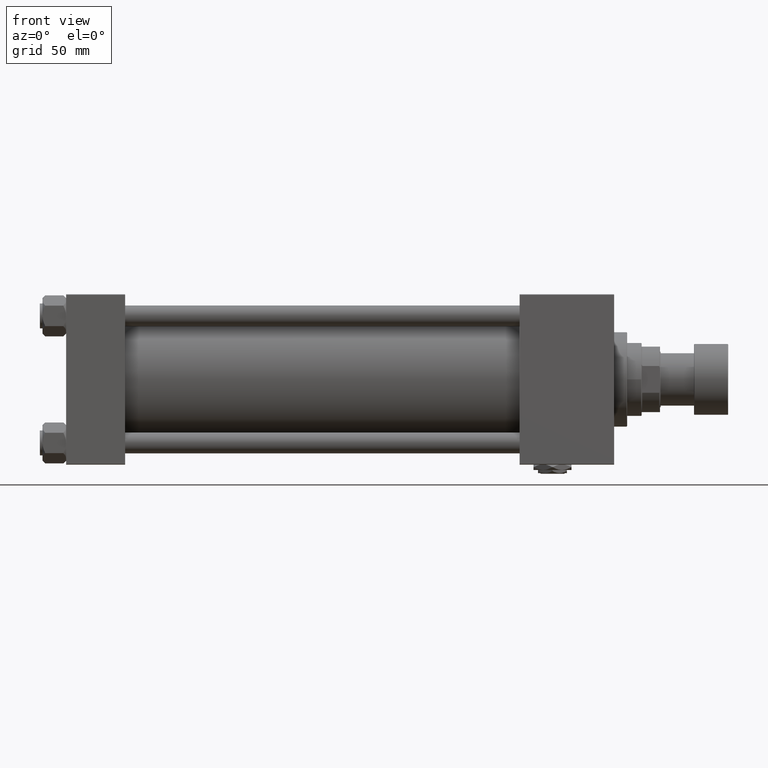
[diagram: clean part render]
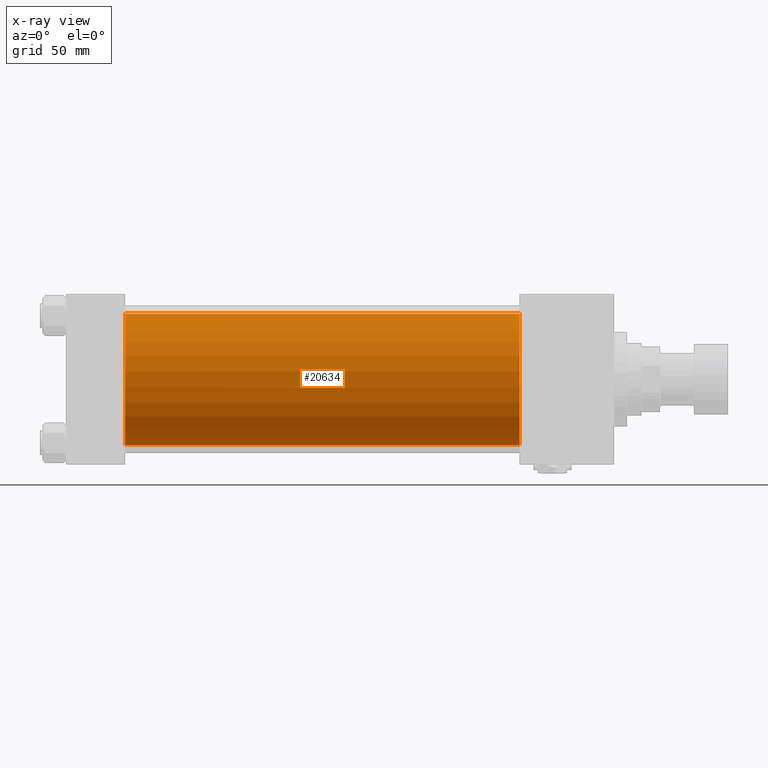
[diagram: x-ray — body ghosted, one internal face saturated and labeled with its STEP entity id]
A machine part, front view, then the same camera in x-ray: the body is ghosted and one INTERNAL B-rep face — a face not visible from any outside direction — is saturated and labeled: STEP entity #20634.
In plain terms, the highlighted cylindrical surface (partial cylindrical patch) has radius 50 mm, axis along (-1, -0, -0).
Its self-contained STEP definition (entity closure, byte-faithful):
#49 = CARTESIAN_POINT ( 'NONE',  ( 45.00000000000000000, -2.602085213965210642E-15, 0.000000000000000000 ) ) ;
#1656 = VERTEX_POINT ( 'NONE', #6246 ) ;
#6246 = CARTESIAN_POINT ( 'NONE',  ( 346.0000000000000000, 3.521148781771555838E-15, -50.00000000000000000 ) ) ;
#7985 = DIRECTION ( 'NONE',  ( 0.000000000000000000, 0.000000000000000000, 1.000000000000000000 ) ) ;
#8751 = ORIENTED_EDGE ( 'NONE', *, *, #52523, .F. ) ;
#9514 = EDGE_CURVE ( 'NONE', #32062, #1656, #27721, .T. ) ;
#10496 = AXIS2_PLACEMENT_3D ( 'NONE', #49, #32011, #35753 ) ;
#11532 = ORIENTED_EDGE ( 'NONE', *, *, #44982, .T. ) ;
#12191 = CARTESIAN_POINT ( 'NONE',  ( 346.0000000000000000, -2.602085213965210642E-15, 50.00000000000000000 ) ) ;
#16067 = ORIENTED_EDGE ( 'NONE', *, *, #34166, .F. ) ;
#20634 = ADVANCED_FACE ( 'NONE', ( #25415 ), #41523, .F. ) ;
#20856 = DIRECTION ( 'NONE',  ( -1.000000000000000000, -0.000000000000000000, -0.000000000000000000 ) ) ;
#23837 = AXIS2_PLACEMENT_3D ( 'NONE', #40736, #20856, #7985 ) ;
#24938 = VECTOR ( 'NONE', #47800, 1000.000000000000000 ) ;
#25415 = FACE_OUTER_BOUND ( 'NONE', #32057, .T. ) ;
#26520 = CARTESIAN_POINT ( 'NONE',  ( 346.0000000000000000, -2.602085213965210642E-15, 0.000000000000000000 ) ) ;
#27721 = CIRCLE ( 'NONE', #38017, 50.00000000000000000 ) ;
#28820 = DIRECTION ( 'NONE',  ( -1.000000000000000000, -0.000000000000000000, -0.000000000000000000 ) ) ;
#30251 = VECTOR ( 'NONE', #28820, 1000.000000000000000 ) ;
#30962 = CARTESIAN_POINT ( 'NONE',  ( 45.00000000000000000, 3.521148781771555838E-15, -50.00000000000000000 ) ) ;
#32011 = DIRECTION ( 'NONE',  ( 1.000000000000000000, 0.000000000000000000, 0.000000000000000000 ) ) ;
#32057 = EDGE_LOOP ( 'NONE', ( #37270, #11532, #16067, #8751 ) ) ;
#32062 = VERTEX_POINT ( 'NONE', #43335 ) ;
#32246 = LINE ( 'NONE', #39504, #24938 ) ;
#34166 = EDGE_CURVE ( 'NONE', #37926, #39644, #44784, .T. ) ;
#35753 = DIRECTION ( 'NONE',  ( 0.000000000000000000, 0.000000000000000000, -1.000000000000000000 ) ) ;
#37270 = ORIENTED_EDGE ( 'NONE', *, *, #9514, .T. ) ;
#37807 = DIRECTION ( 'NONE',  ( 0.000000000000000000, 0.000000000000000000, -1.000000000000000000 ) ) ;
#37926 = VERTEX_POINT ( 'NONE', #45361 ) ;
#38017 = AXIS2_PLACEMENT_3D ( 'NONE', #26520, #38333, #37807 ) ;
#38333 = DIRECTION ( 'NONE',  ( 1.000000000000000000, 0.000000000000000000, 0.000000000000000000 ) ) ;
#39504 = CARTESIAN_POINT ( 'NONE',  ( 346.0000000000000000, 3.521148781771555838E-15, -50.00000000000000000 ) ) ;
#39644 = VERTEX_POINT ( 'NONE', #30962 ) ;
#40736 = CARTESIAN_POINT ( 'NONE',  ( 346.0000000000000000, -2.602085213965210642E-15, 0.000000000000000000 ) ) ;
#40899 = LINE ( 'NONE', #12191, #30251 ) ;
#41523 = CYLINDRICAL_SURFACE ( 'NONE', #23837, 50.00000000000000000 ) ;
#43335 = CARTESIAN_POINT ( 'NONE',  ( 346.0000000000000000, -2.602085213965210642E-15, 50.00000000000000000 ) ) ;
#44784 = CIRCLE ( 'NONE', #10496, 50.00000000000000000 ) ;
#44982 = EDGE_CURVE ( 'NONE', #1656, #39644, #32246, .T. ) ;
#45361 = CARTESIAN_POINT ( 'NONE',  ( 45.00000000000000000, -2.602085213965210642E-15, 50.00000000000000000 ) ) ;
#47800 = DIRECTION ( 'NONE',  ( -1.000000000000000000, -0.000000000000000000, -0.000000000000000000 ) ) ;
#52523 = EDGE_CURVE ( 'NONE', #32062, #37926, #40899, .T. ) ;